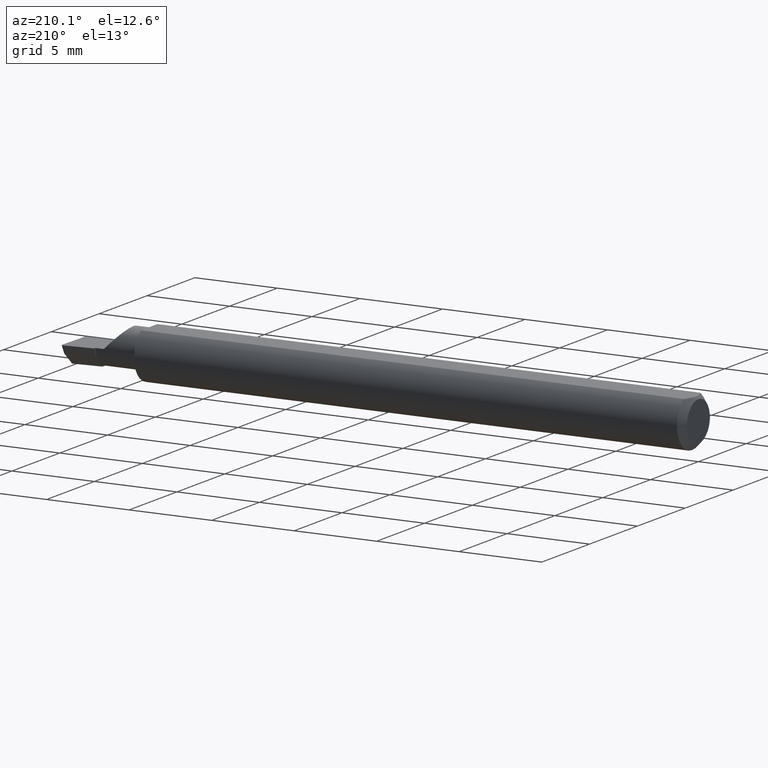
[diagram: clean part render]
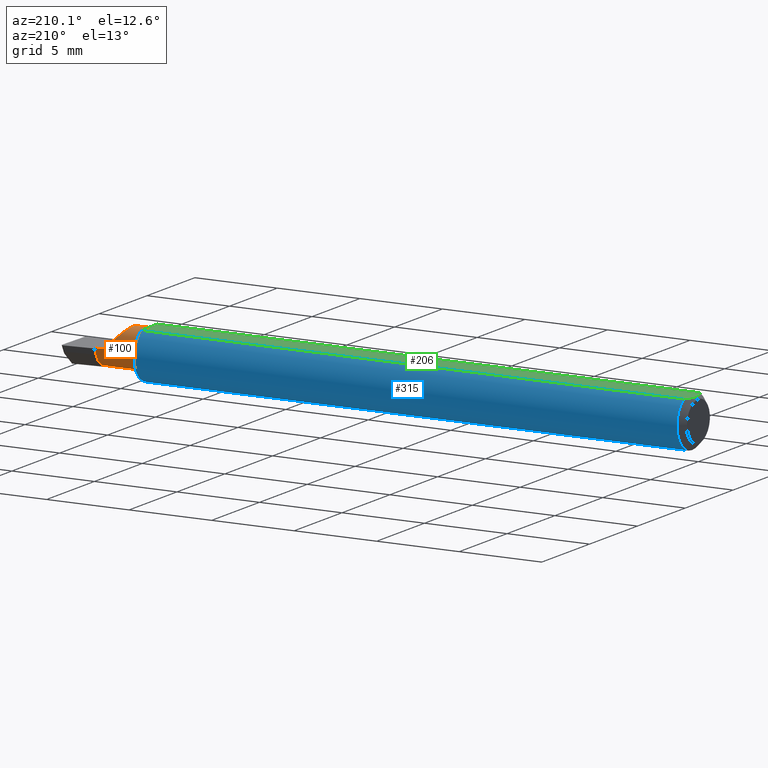
[diagram: same view with three faces highlighted in distinct colors, each labeled with its STEP entity id]
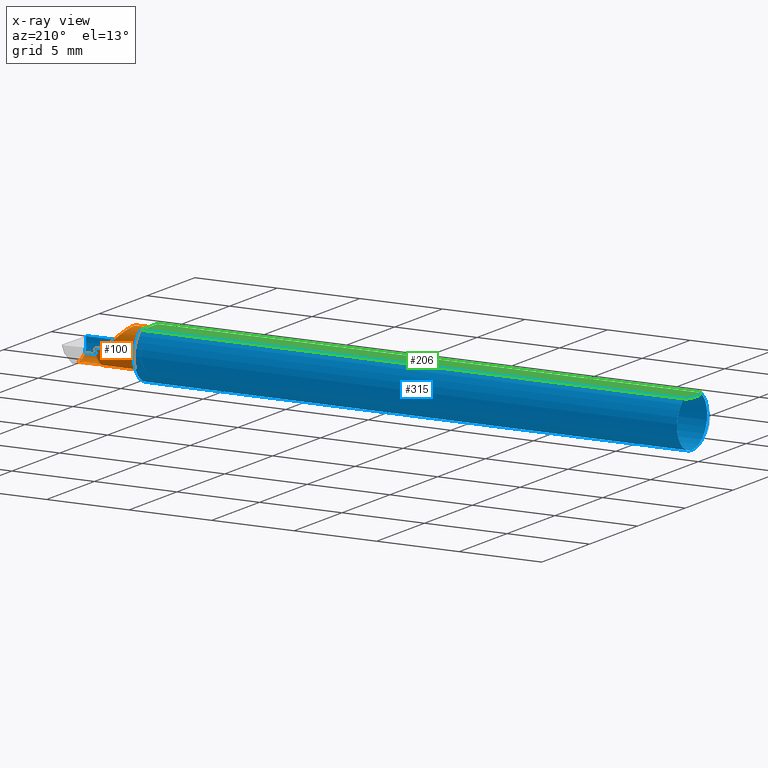
[diagram: x-ray of the same camera — body ghosted, the three highlighted faces saturated]
A machine part, auxiliary view with three faces highlighted in distinct colors.
The next image is the same camera in x-ray (body ghosted, the three faces saturated) — at least one of them is partly hidden behind the body in this view.
Their STEP definitions:

[orange] entity #100 — the highlighted cylindrical surface (edge-blend (fillet) strip) has radius 1.1443 mm, axis along (-1, -0, -0).
#18 = EDGE_CURVE ( 'NONE', #577, #606, #344, .T. ) ;
#32 = AXIS2_PLACEMENT_3D ( 'NONE', #95, #99, #54 ) ;
#54 = DIRECTION ( 'NONE',  ( 0.0000000000000000000, -1.000000000000000000, 0.0000000000000000000 ) ) ;
#58 = CYLINDRICAL_SURFACE ( 'NONE', #584, 0.04504999999999999283 ) ;
#60 = CARTESIAN_POINT ( 'NONE',  ( 1.425000000000000266, 0.01759478951136490138, -0.02073449570020009097 ) ) ;
#68 = DIRECTION ( 'NONE',  ( -1.000000000000000000, -5.691349986800549142E-18, -0.0000000000000000000 ) ) ;
#75 = FACE_OUTER_BOUND ( 'NONE', #499, .T. ) ;
#78 = VERTEX_POINT ( 'NONE', #477 ) ;
#86 = VECTOR ( 'NONE', #531, 39.37007874015748143 ) ;
#88 = CARTESIAN_POINT ( 'NONE',  ( 1.492874371667014088, -0.04428776192107809762, -0.04097143695815298053 ) ) ;
#89 = CARTESIAN_POINT ( 'NONE',  ( 1.371638225962093394, -0.05267366071428568330, 0.03336177403790626522 ) ) ;
#95 = CARTESIAN_POINT ( 'NONE',  ( 1.425000000000000266, -0.02239999999999999630, 0.0000000000000000000 ) ) ;
#99 = DIRECTION ( 'NONE',  ( -1.000000000000000000, -5.691349986800549142E-18, -0.0000000000000000000 ) ) ;
#100 = ADVANCED_FACE ( 'NONE', ( #75 ), #58, .T. ) ;
#106 = AXIS2_PLACEMENT_3D ( 'NONE', #543, #649, #397 ) ;
#112 = AXIS2_PLACEMENT_3D ( 'NONE', #161, #114, #472 ) ;
#114 = DIRECTION ( 'NONE',  ( 1.000000000000000000, 5.691349986800549142E-18, 0.0000000000000000000 ) ) ;
#117 = LINE ( 'NONE', #484, #86 ) ;
#118 = ORIENTED_EDGE ( 'NONE', *, *, #334, .F. ) ;
#120 = DIRECTION ( 'NONE',  ( -1.000000000000000000, -5.691349986800549142E-18, -0.0000000000000000000 ) ) ;
#126 = ORIENTED_EDGE ( 'NONE', *, *, #644, .T. ) ;
#138 = CARTESIAN_POINT ( 'NONE',  ( 1.341051366671215384, -0.01896673977657535939, 0.06394863332878392148 ) ) ;
#142 = CARTESIAN_POINT ( 'NONE',  ( 1.500000000000000222, -0.02239999999999999630, -0.04504999999999998589 ) ) ;
#158 = AXIS2_PLACEMENT_3D ( 'NONE', #237, #591, #185 ) ;
#160 = ORIENTED_EDGE ( 'NONE', *, *, #298, .T. ) ;
#161 = CARTESIAN_POINT ( 'NONE',  ( 1.425000000000000266, -0.02239999999999999630, 0.0000000000000000000 ) ) ;
#180 = CARTESIAN_POINT ( 'NONE',  ( 1.405000000000000249, 0.02264999999999996183, 1.163414459189985436E-17 ) ) ;
#185 = DIRECTION ( 'NONE',  ( 0.0000000000000000000, -1.000000000000000000, 0.0000000000000000000 ) ) ;
#187 = CARTESIAN_POINT ( 'NONE',  ( 1.493589448587071544, -0.05267366071428575269, -0.03336177403790618196 ) ) ;
#188 = EDGE_CURVE ( 'NONE', #199, #606, #387, .T. ) ;
#189 = CARTESIAN_POINT ( 'NONE',  ( 1.405000000000000249, 0.02264999999999996183, 1.163414459189985436E-17 ) ) ;
#192 = VERTEX_POINT ( 'NONE', #493 ) ;
#193 = ORIENTED_EDGE ( 'NONE', *, *, #188, .F. ) ;
#194 = CARTESIAN_POINT ( 'NONE',  ( 1.425000000000000266, 0.02264999999999999653, 1.836970198721030674E-16 ) ) ;
#199 = VERTEX_POINT ( 'NONE', #385 ) ;
#208 = CARTESIAN_POINT ( 'NONE',  ( -2.563953169053421735E-19, 0.02264999999999997918, 1.836970198721030427E-16 ) ) ;
#219 = CARTESIAN_POINT ( 'NONE',  ( 1.372500000000000275, -0.05267366071428575269, -0.03336177403790618196 ) ) ;
#222 = CIRCLE ( 'NONE', #32, 0.04504999999999999283 ) ;
#223 = DIRECTION ( 'NONE',  ( 5.691349986800549142E-18, -1.000000000000000000, 0.0000000000000000000 ) ) ;
#229 = VERTEX_POINT ( 'NONE', #180 ) ;
#237 = CARTESIAN_POINT ( 'NONE',  ( 1.320000000000000062, -0.02239999999999999630, 0.0000000000000000000 ) ) ;
#263 = EDGE_CURVE ( 'NONE', #577, #78, #641, .T. ) ;
#276 = VECTOR ( 'NONE', #120, 39.37007874015748143 ) ;
#296 = ORIENTED_EDGE ( 'NONE', *, *, #618, .F. ) ;
#298 = EDGE_CURVE ( 'NONE', #199, #192, #117, .T. ) ;
#308 = ORIENTED_EDGE ( 'NONE', *, *, #430, .T. ) ;
#328 = CARTESIAN_POINT ( 'NONE',  ( 0.0000000000000000000, -0.02240000000000000324, 0.0000000000000000000 ) ) ;
#334 = EDGE_CURVE ( 'NONE', #481, #554, #460, .T. ) ;
#342 = CIRCLE ( 'NONE', #106, 0.04504999999999999283 ) ;
#344 = LINE ( 'NONE', #219, #276 ) ;
#352 = ORIENTED_EDGE ( 'NONE', *, *, #415, .T. ) ;
#362 = ORIENTED_EDGE ( 'NONE', *, *, #263, .F. ) ;
#364 = CARTESIAN_POINT ( 'NONE',  ( 1.425000000000000266, -0.02239999999999999630, -0.04504999999999998589 ) ) ;
#373 = VECTOR ( 'NONE', #444, 39.37007874015748143 ) ;
#385 = CARTESIAN_POINT ( 'NONE',  ( 1.320000000000000062, -0.05267366071428521146, 0.03336177403790664686 ) ) ;
#387 = CIRCLE ( 'NONE', #158, 0.04504999999999998589 ) ;
#389 = VERTEX_POINT ( 'NONE', #364 ) ;
#397 = DIRECTION ( 'NONE',  ( 0.0000000000000000000, -1.000000000000000000, 0.0000000000000000000 ) ) ;
#399 = CARTESIAN_POINT ( 'NONE',  ( 1.425000000000000266, -0.0004635770541651888376, -0.03934839067028601811 ) ) ;
#406 = DIRECTION ( 'NONE',  ( 1.000000000000000000, 5.691349986800549142E-18, 0.0000000000000000000 ) ) ;
#415 = EDGE_CURVE ( 'NONE', #229, #607, #490, .T. ) ;
#423 = ORIENTED_EDGE ( 'NONE', *, *, #483, .T. ) ;
#430 = EDGE_CURVE ( 'NONE', #481, #389, #222, .T. ) ;
#444 = DIRECTION ( 'NONE',  ( -1.000000000000000000, 5.691349986800548372E-18, -0.0000000000000000000 ) ) ;
#447 = CARTESIAN_POINT ( 'NONE',  ( 1.493589448587071544, -0.05267366071428575269, -0.03336177403790618196 ) ) ;
#460 = CIRCLE ( 'NONE', #112, 0.04504999999999999283 ) ;
#461 = ORIENTED_EDGE ( 'NONE', *, *, #18, .T. ) ;
#472 = DIRECTION ( 'NONE',  ( 0.0000000000000000000, -1.000000000000000000, 1.776356839400250465E-15 ) ) ;
#477 = CARTESIAN_POINT ( 'NONE',  ( 1.492946566646604856, -0.02239999999999999630, -0.04504999999999998589 ) ) ;
#481 = VERTEX_POINT ( 'NONE', #399 ) ;
#483 = EDGE_CURVE ( 'NONE', #607, #554, #342, .T. ) ;
#484 = CARTESIAN_POINT ( 'NONE',  ( 1.372500000000000275, -0.05267366071428575269, 0.03336177403790618196 ) ) ;
#490 = LINE ( 'NONE', #208, #629 ) ;
#493 = CARTESIAN_POINT ( 'NONE',  ( 1.371638225962093394, -0.05267366071428568330, 0.03336177403790626522 ) ) ;
#496 = CARTESIAN_POINT ( 'NONE',  ( 1.492650040401416911, -0.03372388044486963193, -0.04504999999999999977 ) ) ;
#499 = EDGE_LOOP ( 'NONE', ( #362, #461, #193, #160, #126, #352, #423, #118, #308, #296 ) ) ;
#506 = LINE ( 'NONE', #142, #373 ) ;
#531 = DIRECTION ( 'NONE',  ( 1.000000000000000000, 5.691349986800549142E-18, 0.0000000000000000000 ) ) ;
#543 = CARTESIAN_POINT ( 'NONE',  ( 1.425000000000000266, -0.02239999999999999630, 0.0000000000000000000 ) ) ;
#554 = VERTEX_POINT ( 'NONE', #60 ) ;
#571 =( BOUNDED_CURVE ( )  B_SPLINE_CURVE ( 3, ( #89, #138, #648, #189 ),
 .UNSPECIFIED., .F., .F. ) 
 B_SPLINE_CURVE_WITH_KNOTS ( ( 4, 4 ),
 ( 5.546277306536657292, 7.853981633974482790 ),
 .UNSPECIFIED. ) 
 CURVE ( )  GEOMETRIC_REPRESENTATION_ITEM ( )  RATIONAL_B_SPLINE_CURVE ( ( 1.000000000000000000, 0.6033122017620005106, 0.6033122017620005106, 1.000000000000000000 ) ) 
 REPRESENTATION_ITEM ( '' )  );
#577 = VERTEX_POINT ( 'NONE', #447 ) ;
#584 = AXIS2_PLACEMENT_3D ( 'NONE', #328, #68, #223 ) ;
#591 = DIRECTION ( 'NONE',  ( -1.000000000000000000, -5.691349986800549142E-18, -0.0000000000000000000 ) ) ;
#602 = CARTESIAN_POINT ( 'NONE',  ( 1.492946566646604856, -0.02239999999999999630, -0.04504999999999998589 ) ) ;
#606 = VERTEX_POINT ( 'NONE', #608 ) ;
#607 = VERTEX_POINT ( 'NONE', #194 ) ;
#608 = CARTESIAN_POINT ( 'NONE',  ( 1.320000000000000062, -0.05267366071428526697, -0.03336177403790661217 ) ) ;
#618 = EDGE_CURVE ( 'NONE', #78, #389, #506, .T. ) ;
#629 = VECTOR ( 'NONE', #406, 39.37007874015748143 ) ;
#641 =( BOUNDED_CURVE ( )  B_SPLINE_CURVE ( 3, ( #187, #88, #496, #602 ),
 .UNSPECIFIED., .F., .F. ) 
 B_SPLINE_CURVE_WITH_KNOTS ( ( 4, 4 ),
 ( 5.756326750816668891, 6.493234751459600496 ),
 .UNSPECIFIED. ) 
 CURVE ( )  GEOMETRIC_REPRESENTATION_ITEM ( )  RATIONAL_B_SPLINE_CURVE ( ( 1.000000000000000000, 0.9552568590268905036, 0.9552568590268905036, 1.000000000000000000 ) ) 
 REPRESENTATION_ITEM ( '' )  );
#644 = EDGE_CURVE ( 'NONE', #192, #229, #571, .T. ) ;
#648 = CARTESIAN_POINT ( 'NONE',  ( 1.359483931624303921, 0.02264999999999999306, 0.04551606837569566882 ) ) ;
#649 = DIRECTION ( 'NONE',  ( -1.000000000000000000, -5.691349986800549142E-18, -0.0000000000000000000 ) ) ;

[blue] entity #315 — the highlighted cylindrical surface (edge-blend (fillet) strip) has radius 1.5837 mm, axis along (-1, -0, -0).
#4 = VERTEX_POINT ( 'NONE', #174 ) ;
#8 = CARTESIAN_POINT ( 'NONE',  ( 1.315004130572074326, -0.05000376612213290606, -0.03726710953164809326 ) ) ;
#18 = EDGE_CURVE ( 'NONE', #577, #606, #344, .T. ) ;
#21 = CARTESIAN_POINT ( 'NONE',  ( 0.01500000000000185039, -0.03386738844380016850, 0.05235000000000000070 ) ) ;
#26 = CARTESIAN_POINT ( 'NONE',  ( 1.393107270290912414, -0.06234999999999999570, 0.01189272970908759539 ) ) ;
#31 = ORIENTED_EDGE ( 'NONE', *, *, #84, .T. ) ;
#37 = CARTESIAN_POINT ( 'NONE',  ( 1.317655921777290517, -0.05218794095652969783, 0.03413037274368475177 ) ) ;
#39 = VERTEX_POINT ( 'NONE', #21 ) ;
#43 = ORIENTED_EDGE ( 'NONE', *, *, #562, .T. ) ;
#61 = ORIENTED_EDGE ( 'NONE', *, *, #256, .F. ) ;
#64 = VERTEX_POINT ( 'NONE', #69 ) ;
#69 = CARTESIAN_POINT ( 'NONE',  ( 1.405000000000000249, -0.06235000000000005121, 1.163414459189985436E-17 ) ) ;
#81 = B_SPLINE_CURVE_WITH_KNOTS ( 'NONE', 3,
 ( #514, #157, #624, #320, #8, #365, #451, #501, #141, #609 ),
 .UNSPECIFIED., .F., .F.,
 ( 4, 2, 2, 2, 4 ),
 ( 1.961463022573438545E-07, 0.0001095081557633810167, 0.0002188201652245046734, 0.0004374441841467520409, 0.0008746922219912415175 ),
 .UNSPECIFIED. ) ;
#84 = EDGE_CURVE ( 'NONE', #577, #322, #221, .T. ) ;
#86 = VECTOR ( 'NONE', #531, 39.37007874015748143 ) ;
#92 = ORIENTED_EDGE ( 'NONE', *, *, #459, .F. ) ;
#113 = CIRCLE ( 'NONE', #285, 0.06235000000000000264 ) ;
#116 =( BOUNDED_CURVE ( )  B_SPLINE_CURVE ( 3, ( #125, #26, #381, #284 ),
 .UNSPECIFIED., .F., .F. ) 
 B_SPLINE_CURVE_WITH_KNOTS ( ( 4, 4 ),
 ( 4.712388980384689674, 5.276982613231242958 ),
 .UNSPECIFIED. ) 
 CURVE ( )  GEOMETRIC_REPRESENTATION_ITEM ( )  RATIONAL_B_SPLINE_CURVE ( ( 1.000000000000000000, 0.9736121104788254543, 0.9736121104788254543, 1.000000000000000000 ) ) 
 REPRESENTATION_ITEM ( '' )  );
#117 = LINE ( 'NONE', #484, #86 ) ;
#120 = DIRECTION ( 'NONE',  ( -1.000000000000000000, -5.691349986800549142E-18, -0.0000000000000000000 ) ) ;
#125 = CARTESIAN_POINT ( 'NONE',  ( 1.405000000000000249, -0.06235000000000005121, 1.163414459189985436E-17 ) ) ;
#127 = DIRECTION ( 'NONE',  ( -1.000000000000000000, -0.0000000000000000000, -0.0000000000000000000 ) ) ;
#128 = VECTOR ( 'NONE', #127, 39.37007874015748143 ) ;
#129 = ORIENTED_EDGE ( 'NONE', *, *, #292, .T. ) ;
#139 = CARTESIAN_POINT ( 'NONE',  ( 1.313772805890642381, -0.04842073308978436796, 0.03934539127329832187 ) ) ;
#140 = DIRECTION ( 'NONE',  ( -1.000000000000000000, -0.0000000000000000000, -0.0000000000000000000 ) ) ;
#141 = CARTESIAN_POINT ( 'NONE',  ( 1.310000000000000275, -0.03531759654985788116, -0.05169891940248795559 ) ) ;
#145 = AXIS2_PLACEMENT_3D ( 'NONE', #569, #218, #268 ) ;
#146 = CARTESIAN_POINT ( 'NONE',  ( 0.01500000000000000465, 0.0000000000000000000, 0.0000000000000000000 ) ) ;
#151 = VECTOR ( 'NONE', #140, 39.37007874015748143 ) ;
#153 = EDGE_CURVE ( 'NONE', #322, #64, #523, .T. ) ;
#157 = CARTESIAN_POINT ( 'NONE',  ( 1.318537702541799250, -0.05267366071428540575, -0.03336177403790673013 ) ) ;
#164 = ORIENTED_EDGE ( 'NONE', *, *, #18, .F. ) ;
#174 = CARTESIAN_POINT ( 'NONE',  ( 0.01500000000000000465, 0.0000000000000000000, -0.06235000000000000264 ) ) ;
#181 = CARTESIAN_POINT ( 'NONE',  ( 1.310106967748909668, -0.03386738844375186686, 0.05235000000000000070 ) ) ;
#182 = ORIENTED_EDGE ( 'NONE', *, *, #153, .T. ) ;
#192 = VERTEX_POINT ( 'NONE', #493 ) ;
#195 = CARTESIAN_POINT ( 'NONE',  ( 1.320000000000000062, -0.05267366071428521146, 0.03336177403790664686 ) ) ;
#199 = VERTEX_POINT ( 'NONE', #385 ) ;
#205 = CARTESIAN_POINT ( 'NONE',  ( 1.310367046603136298, -0.03808730168870256422, 0.04961996292138169673 ) ) ;
#218 = DIRECTION ( 'NONE',  ( -1.000000000000000000, -0.0000000000000000000, -0.0000000000000000000 ) ) ;
#219 = CARTESIAN_POINT ( 'NONE',  ( 1.372500000000000275, -0.05267366071428575269, -0.03336177403790618196 ) ) ;
#221 =( BOUNDED_CURVE ( )  B_SPLINE_CURVE ( 3, ( #579, #478, #422, #375 ),
 .UNSPECIFIED., .F., .T. ) 
 B_SPLINE_CURVE_WITH_KNOTS ( ( 4, 4 ),
 ( 0.7961532496683304538, 1.360746882514882294 ),
 .UNSPECIFIED. ) 
 CURVE ( )  GEOMETRIC_REPRESENTATION_ITEM ( )  RATIONAL_B_SPLINE_CURVE ( ( 1.000000000000000000, 0.9736121104788255654, 0.9736121104788255654, 1.000000000000000000 ) ) 
 REPRESENTATION_ITEM ( '' )  );
#227 = EDGE_CURVE ( 'NONE', #64, #192, #116, .T. ) ;
#232 = ORIENTED_EDGE ( 'NONE', *, *, #455, .F. ) ;
#234 = DIRECTION ( 'NONE',  ( 1.000000000000000000, 0.0000000000000000000, 0.0000000000000000000 ) ) ;
#247 = CARTESIAN_POINT ( 'NONE',  ( 1.316045261487122531, -0.05110091261051569883, 0.03573737896485316284 ) ) ;
#249 = CARTESIAN_POINT ( 'NONE',  ( 1.310000000000000275, 0.03386738844375224156, 0.05235000000000000070 ) ) ;
#250 = CARTESIAN_POINT ( 'NONE',  ( 1.310106967748909668, -0.03386738844375186686, 0.05235000000000000070 ) ) ;
#253 = CIRCLE ( 'NONE', #632, 0.06235000000000000264 ) ;
#255 = CARTESIAN_POINT ( 'NONE',  ( 1.310000000000000275, 0.0000000000000000000, 0.0000000000000000000 ) ) ;
#256 = EDGE_CURVE ( 'NONE', #4, #39, #510, .T. ) ;
#260 = DIRECTION ( 'NONE',  ( 0.0000000000000000000, 1.000000000000000000, 0.0000000000000000000 ) ) ;
#265 = AXIS2_PLACEMENT_3D ( 'NONE', #595, #297, #646 ) ;
#268 = DIRECTION ( 'NONE',  ( 0.0000000000000000000, 0.0000000000000000000, 1.000000000000000000 ) ) ;
#276 = VECTOR ( 'NONE', #120, 39.37007874015748143 ) ;
#284 = CARTESIAN_POINT ( 'NONE',  ( 1.371638225962093394, -0.05267366071428568330, 0.03336177403790626522 ) ) ;
#285 = AXIS2_PLACEMENT_3D ( 'NONE', #255, #556, #260 ) ;
#291 = VERTEX_POINT ( 'NONE', #181 ) ;
#292 = EDGE_CURVE ( 'NONE', #662, #580, #361, .T. ) ;
#297 = DIRECTION ( 'NONE',  ( -1.000000000000000000, -0.0000000000000000000, -0.0000000000000000000 ) ) ;
#298 = EDGE_CURVE ( 'NONE', #199, #192, #117, .T. ) ;
#302 = CARTESIAN_POINT ( 'NONE',  ( 0.0000000000000000000, -0.03386738844375222768, 0.05234999999999997988 ) ) ;
#309 = ORIENTED_EDGE ( 'NONE', *, *, #425, .F. ) ;
#315 = ADVANCED_FACE ( 'NONE', ( #346 ), #336, .T. ) ;
#320 = CARTESIAN_POINT ( 'NONE',  ( 1.315660490243265590, -0.05075743519649666274, -0.03622883715117793113 ) ) ;
#322 = VERTEX_POINT ( 'NONE', #419 ) ;
#336 = CYLINDRICAL_SURFACE ( 'NONE', #145, 0.06235000000000000264 ) ;
#343 = CARTESIAN_POINT ( 'NONE',  ( 2.249639673992788601E-32, -0.06234999999999999570, 1.836970198721030427E-16 ) ) ;
#344 = LINE ( 'NONE', #219, #276 ) ;
#346 = FACE_OUTER_BOUND ( 'NONE', #536, .T. ) ;
#349 = CARTESIAN_POINT ( 'NONE',  ( 1.318720799723182457, -0.05267366071440097997, 0.03336177403772624950 ) ) ;
#361 = LINE ( 'NONE', #392, #480 ) ;
#365 = CARTESIAN_POINT ( 'NONE',  ( 1.313290526241661871, -0.04760738330986987593, -0.04034632413678363588 ) ) ;
#366 = VERTEX_POINT ( 'NONE', #614 ) ;
#375 = CARTESIAN_POINT ( 'NONE',  ( 1.497433779686218935, -0.06235000000000005121, 3.231995301756492833E-19 ) ) ;
#381 = CARTESIAN_POINT ( 'NONE',  ( 1.381685276638327187, -0.05903713403021953326, 0.02331472336167230916 ) ) ;
#385 = CARTESIAN_POINT ( 'NONE',  ( 1.320000000000000062, -0.05267366071428521146, 0.03336177403790664686 ) ) ;
#386 = EDGE_CURVE ( 'NONE', #366, #580, #113, .T. ) ;
#392 = CARTESIAN_POINT ( 'NONE',  ( 0.0000000000000000000, 0.03386738844375223462, 0.05234999999999997988 ) ) ;
#410 = LINE ( 'NONE', #302, #151 ) ;
#419 = CARTESIAN_POINT ( 'NONE',  ( 1.497433779686218935, -0.06235000000000005121, 3.231995301756492833E-19 ) ) ;
#422 = CARTESIAN_POINT ( 'NONE',  ( 1.495973035530412831, -0.06235000000000000958, -0.01189272970908757283 ) ) ;
#425 = EDGE_CURVE ( 'NONE', #662, #4, #253, .T. ) ;
#435 = B_SPLINE_CURVE_WITH_KNOTS ( 'NONE', 3,
 ( #250, #205, #548, #498, #139, #605, #247, #37, #349, #195 ),
 .UNSPECIFIED., .F., .F.,
 ( 4, 2, 2, 2, 4 ),
 ( 3.634625588757930129E-07, 0.0003783602501879807412, 0.0005673586440025337125, 0.0006618578409098103878, 0.0007563570378170869548 ),
 .UNSPECIFIED. ) ;
#447 = CARTESIAN_POINT ( 'NONE',  ( 1.493589448587071544, -0.05267366071428575269, -0.03336177403790618196 ) ) ;
#451 = CARTESIAN_POINT ( 'NONE',  ( 1.312480429362909096, -0.04577347211771957969, -0.04242545815719124536 ) ) ;
#455 = EDGE_CURVE ( 'NONE', #606, #366, #81, .T. ) ;
#459 = EDGE_CURVE ( 'NONE', #291, #199, #435, .T. ) ;
#478 = CARTESIAN_POINT ( 'NONE',  ( 1.494656860756163663, -0.05903713403021956796, -0.02331472336167226406 ) ) ;
#480 = VECTOR ( 'NONE', #234, 39.37007874015748143 ) ;
#484 = CARTESIAN_POINT ( 'NONE',  ( 1.372500000000000275, -0.05267366071428575269, 0.03336177403790618196 ) ) ;
#493 = CARTESIAN_POINT ( 'NONE',  ( 1.371638225962093394, -0.05267366071428568330, 0.03336177403790626522 ) ) ;
#498 = CARTESIAN_POINT ( 'NONE',  ( 1.312979226362146701, -0.04686191816083948997, 0.04119888732011497273 ) ) ;
#501 = CARTESIAN_POINT ( 'NONE',  ( 1.310579206429431265, -0.03988586008976036101, -0.04823973116775215342 ) ) ;
#507 = DIRECTION ( 'NONE',  ( -1.000000000000000000, -0.0000000000000000000, -0.0000000000000000000 ) ) ;
#510 = CIRCLE ( 'NONE', #265, 0.06235000000000000264 ) ;
#514 = CARTESIAN_POINT ( 'NONE',  ( 1.320000000000000062, -0.05267366071428526697, -0.03336177403790661217 ) ) ;
#523 = LINE ( 'NONE', #343, #128 ) ;
#524 = ORIENTED_EDGE ( 'NONE', *, *, #298, .F. ) ;
#526 = ORIENTED_EDGE ( 'NONE', *, *, #386, .F. ) ;
#531 = DIRECTION ( 'NONE',  ( 1.000000000000000000, 5.691349986800549142E-18, 0.0000000000000000000 ) ) ;
#536 = EDGE_LOOP ( 'NONE', ( #164, #31, #182, #596, #524, #92, #43, #61, #309, #129, #526, #232 ) ) ;
#548 = CARTESIAN_POINT ( 'NONE',  ( 1.311047180432317827, -0.04185659023926307371, 0.04646513869620317455 ) ) ;
#551 = DIRECTION ( 'NONE',  ( 0.0000000000000000000, 0.0000000000000000000, 1.000000000000000000 ) ) ;
#556 = DIRECTION ( 'NONE',  ( 1.000000000000000000, 5.691349986800549142E-18, 0.0000000000000000000 ) ) ;
#562 = EDGE_CURVE ( 'NONE', #291, #39, #410, .T. ) ;
#564 = CARTESIAN_POINT ( 'NONE',  ( 0.01500000000000000465, 0.03386738844375223462, 0.05234999999999997988 ) ) ;
#569 = CARTESIAN_POINT ( 'NONE',  ( 0.0000000000000000000, 0.0000000000000000000, 0.0000000000000000000 ) ) ;
#577 = VERTEX_POINT ( 'NONE', #447 ) ;
#579 = CARTESIAN_POINT ( 'NONE',  ( 1.493589448587071544, -0.05267366071428575269, -0.03336177403790618196 ) ) ;
#580 = VERTEX_POINT ( 'NONE', #249 ) ;
#595 = CARTESIAN_POINT ( 'NONE',  ( 0.01500000000000000465, 0.0000000000000000000, 0.0000000000000000000 ) ) ;
#596 = ORIENTED_EDGE ( 'NONE', *, *, #227, .T. ) ;
#605 = CARTESIAN_POINT ( 'NONE',  ( 1.315418897882207450, -0.05046130401578131919, 0.03663953430213277157 ) ) ;
#606 = VERTEX_POINT ( 'NONE', #608 ) ;
#608 = CARTESIAN_POINT ( 'NONE',  ( 1.320000000000000062, -0.05267366071428526697, -0.03336177403790661217 ) ) ;
#609 = CARTESIAN_POINT ( 'NONE',  ( 1.310000000000000275, -0.03032991071428577795, -0.05447585718521052306 ) ) ;
#614 = CARTESIAN_POINT ( 'NONE',  ( 1.310000000000000275, -0.03032991071428577795, -0.05447585718521052306 ) ) ;
#624 = CARTESIAN_POINT ( 'NONE',  ( 1.317380869089463502, -0.05205930255399786322, -0.03433183488607100681 ) ) ;
#632 = AXIS2_PLACEMENT_3D ( 'NONE', #146, #507, #551 ) ;
#646 = DIRECTION ( 'NONE',  ( 0.0000000000000000000, 0.0000000000000000000, 1.000000000000000000 ) ) ;
#662 = VERTEX_POINT ( 'NONE', #564 ) ;

[green] entity #206 — the highlighted planar face has unit normal (0, -0, -1).
#14 = VERTEX_POINT ( 'NONE', #433 ) ;
#21 = CARTESIAN_POINT ( 'NONE',  ( 0.01500000000000185039, -0.03386738844380016850, 0.05235000000000000070 ) ) ;
#39 = VERTEX_POINT ( 'NONE', #21 ) ;
#52 = CARTESIAN_POINT ( 'NONE',  ( 0.01218518006020415448, 0.02868529347538067639, 0.05235000000000000070 ) ) ;
#71 = EDGE_CURVE ( 'NONE', #39, #14, #489, .T. ) ;
#105 = ORIENTED_EDGE ( 'NONE', *, *, #525, .F. ) ;
#122 = B_SPLINE_CURVE_WITH_KNOTS ( 'NONE', 3,
 ( #201, #448, #252, #613, #656, #354 ),
 .UNSPECIFIED., .F., .F.,
 ( 4, 2, 4 ),
 ( 0.0001373866386898216002, 0.0004989949926051524777, 0.0008606033465204833552 ),
 .UNSPECIFIED. ) ;
#132 = LINE ( 'NONE', #612, #540 ) ;
#140 = DIRECTION ( 'NONE',  ( -1.000000000000000000, -0.0000000000000000000, -0.0000000000000000000 ) ) ;
#151 = VECTOR ( 'NONE', #140, 39.37007874015748143 ) ;
#169 = CARTESIAN_POINT ( 'NONE',  ( 0.004999999999989931769, 7.898418181085889318E-16, 0.05235000000000000070 ) ) ;
#181 = CARTESIAN_POINT ( 'NONE',  ( 1.310106967748909668, -0.03386738844375186686, 0.05235000000000000070 ) ) ;
#201 = CARTESIAN_POINT ( 'NONE',  ( 1.310000000000000275, -0.005371200864418011582, 0.05235000000000000070 ) ) ;
#206 = ADVANCED_FACE ( 'NONE', ( #535 ), #289, .F. ) ;
#225 = CARTESIAN_POINT ( 'NONE',  ( 0.006057557792978142223, -0.01187252718384441616, 0.05234999999999998682 ) ) ;
#234 = DIRECTION ( 'NONE',  ( 1.000000000000000000, 0.0000000000000000000, 0.0000000000000000000 ) ) ;
#238 = B_SPLINE_CURVE_WITH_KNOTS ( 'NONE', 3,
 ( #619, #314, #663, #359, #52, #411 ),
 .UNSPECIFIED., .F., .F.,
 ( 4, 2, 4 ),
 ( 0.003037199019464981685, 0.003488061124369676216, 0.003938923229274370746 ),
 .UNSPECIFIED. ) ;
#246 = CARTESIAN_POINT ( 'NONE',  ( 1.310000000000000275, -0.005371200864418011582, 0.05235000000000000070 ) ) ;
#249 = CARTESIAN_POINT ( 'NONE',  ( 1.310000000000000275, 0.03386738844375224156, 0.05235000000000000070 ) ) ;
#252 = CARTESIAN_POINT ( 'NONE',  ( 1.310282193164834519, -0.01486379476123350814, 0.05235000000000000070 ) ) ;
#273 = CARTESIAN_POINT ( 'NONE',  ( 0.01216137397042175820, -0.02864146636719541034, 0.05235000000000000070 ) ) ;
#275 = ORIENTED_EDGE ( 'NONE', *, *, #393, .F. ) ;
#279 = EDGE_LOOP ( 'NONE', ( #105, #429, #561, #275, #347, #565 ) ) ;
#289 = PLANE ( 'NONE',  #306 ) ;
#291 = VERTEX_POINT ( 'NONE', #181 ) ;
#292 = EDGE_CURVE ( 'NONE', #662, #580, #361, .T. ) ;
#302 = CARTESIAN_POINT ( 'NONE',  ( 0.0000000000000000000, -0.03386738844375222768, 0.05234999999999997988 ) ) ;
#306 = AXIS2_PLACEMENT_3D ( 'NONE', #533, #491, #587 ) ;
#314 = CARTESIAN_POINT ( 'NONE',  ( 0.004999999999999264581, 0.005945714695019511074, 0.05235000000000000070 ) ) ;
#347 = ORIENTED_EDGE ( 'NONE', *, *, #71, .F. ) ;
#354 = CARTESIAN_POINT ( 'NONE',  ( 1.310106967748909668, -0.03386738844375186686, 0.05235000000000000070 ) ) ;
#359 = CARTESIAN_POINT ( 'NONE',  ( 0.009669996313769784607, 0.02323004575534281385, 0.05234999999999998682 ) ) ;
#361 = LINE ( 'NONE', #392, #480 ) ;
#392 = CARTESIAN_POINT ( 'NONE',  ( 0.0000000000000000000, 0.03386738844375223462, 0.05234999999999997988 ) ) ;
#393 = EDGE_CURVE ( 'NONE', #14, #662, #238, .T. ) ;
#410 = LINE ( 'NONE', #302, #151 ) ;
#411 = CARTESIAN_POINT ( 'NONE',  ( 0.01500000000000000465, 0.03386738844375223462, 0.05234999999999997988 ) ) ;
#429 = ORIENTED_EDGE ( 'NONE', *, *, #594, .F. ) ;
#433 = CARTESIAN_POINT ( 'NONE',  ( 0.004999999999989931769, 7.898418181085889318E-16, 0.05235000000000000070 ) ) ;
#448 = CARTESIAN_POINT ( 'NONE',  ( 1.310000000000000275, -0.01011697777889329630, 0.05235000000000000070 ) ) ;
#480 = VECTOR ( 'NONE', #234, 39.37007874015748143 ) ;
#489 = B_SPLINE_CURVE_WITH_KNOTS ( 'NONE', 3,
 ( #631, #273, #576, #225, #522, #169 ),
 .UNSPECIFIED., .F., .F.,
 ( 4, 2, 4 ),
 ( 0.002133667072902290657, 0.002585433046183636171, 0.003037199019464981685 ),
 .UNSPECIFIED. ) ;
#491 = DIRECTION ( 'NONE',  ( 0.0000000000000000000, -7.598598113218357399E-17, -1.000000000000000000 ) ) ;
#522 = CARTESIAN_POINT ( 'NONE',  ( 0.004999999999998879473, -0.005957634400466955450, 0.05235000000000000070 ) ) ;
#525 = EDGE_CURVE ( 'NONE', #621, #291, #122, .T. ) ;
#533 = CARTESIAN_POINT ( 'NONE',  ( 1.500000000000000222, 0.1123499999999999915, 0.05234999999999998682 ) ) ;
#535 = FACE_OUTER_BOUND ( 'NONE', #279, .T. ) ;
#540 = VECTOR ( 'NONE', #549, 39.37007874015748143 ) ;
#549 = DIRECTION ( 'NONE',  ( 5.691349986800549142E-18, -1.000000000000000000, 7.598598113218357399E-17 ) ) ;
#561 = ORIENTED_EDGE ( 'NONE', *, *, #292, .F. ) ;
#562 = EDGE_CURVE ( 'NONE', #291, #39, #410, .T. ) ;
#564 = CARTESIAN_POINT ( 'NONE',  ( 0.01500000000000000465, 0.03386738844375223462, 0.05234999999999997988 ) ) ;
#565 = ORIENTED_EDGE ( 'NONE', *, *, #562, .F. ) ;
#576 = CARTESIAN_POINT ( 'NONE',  ( 0.009678036133109307534, -0.02325481837211496039, 0.05235000000000000070 ) ) ;
#580 = VERTEX_POINT ( 'NONE', #249 ) ;
#587 = DIRECTION ( 'NONE',  ( 0.0000000000000000000, 1.000000000000000000, -7.598598113218357399E-17 ) ) ;
#594 = EDGE_CURVE ( 'NONE', #580, #621, #132, .T. ) ;
#612 = CARTESIAN_POINT ( 'NONE',  ( 1.310000000000000275, 0.1123499999999999915, 0.05234999999999998682 ) ) ;
#613 = CARTESIAN_POINT ( 'NONE',  ( 1.310419621069780494, -0.02436103386348709154, 0.05234999999999998682 ) ) ;
#619 = CARTESIAN_POINT ( 'NONE',  ( 0.004999999999989931769, 7.898418181085889318E-16, 0.05235000000000000070 ) ) ;
#621 = VERTEX_POINT ( 'NONE', #246 ) ;
#631 = CARTESIAN_POINT ( 'NONE',  ( 0.01500000000000185039, -0.03386738844380016850, 0.05235000000000000070 ) ) ;
#656 = CARTESIAN_POINT ( 'NONE',  ( 1.310256932871721292, -0.02911433999359991365, 0.05235000000000000070 ) ) ;
#662 = VERTEX_POINT ( 'NONE', #564 ) ;
#663 = CARTESIAN_POINT ( 'NONE',  ( 0.006064493299689842180, 0.01189382783781397189, 0.05235000000000000070 ) ) ;